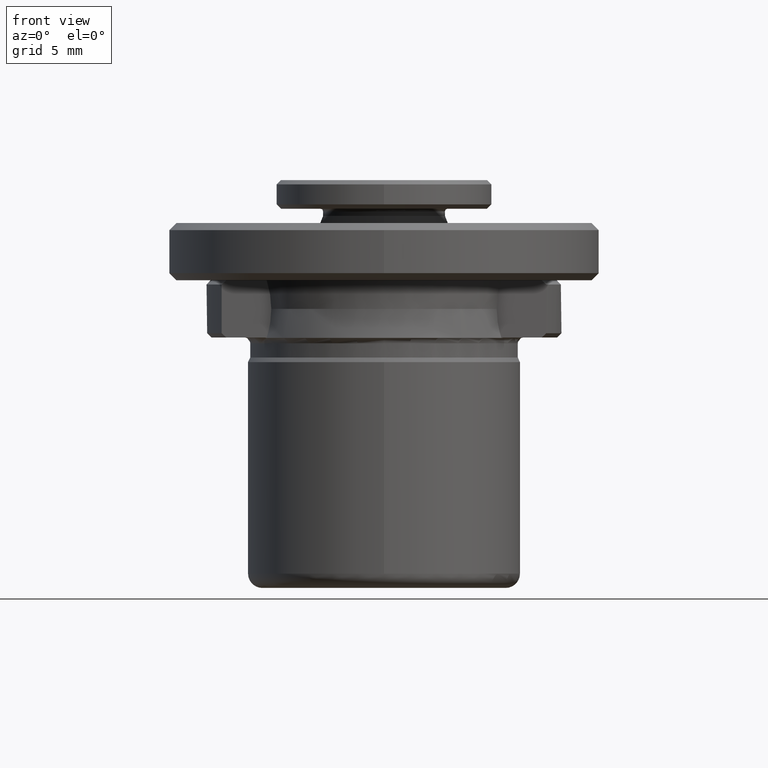
[diagram: clean part render]
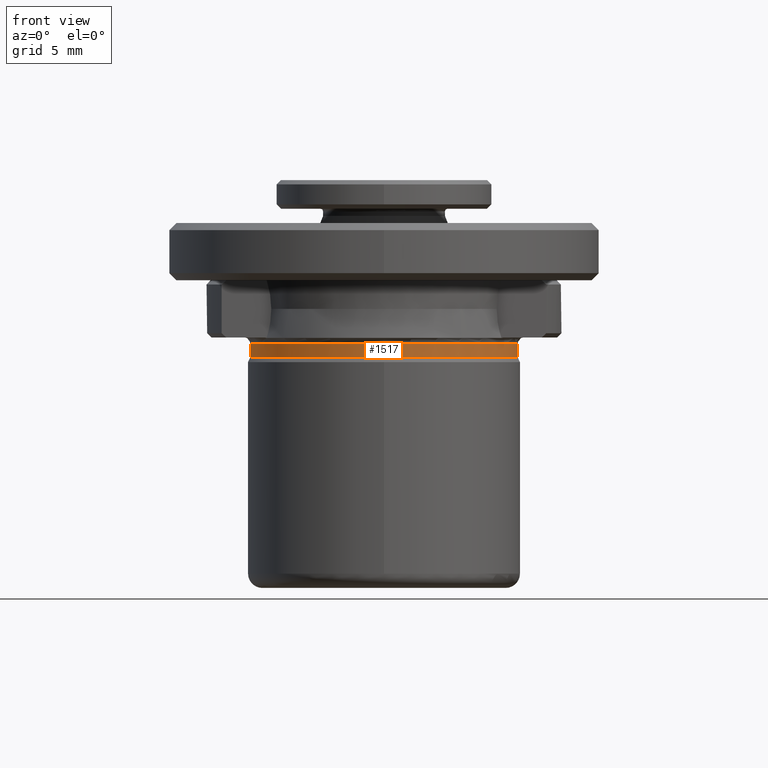
[diagram: same view with one face highlighted and labeled with its STEP entity id]
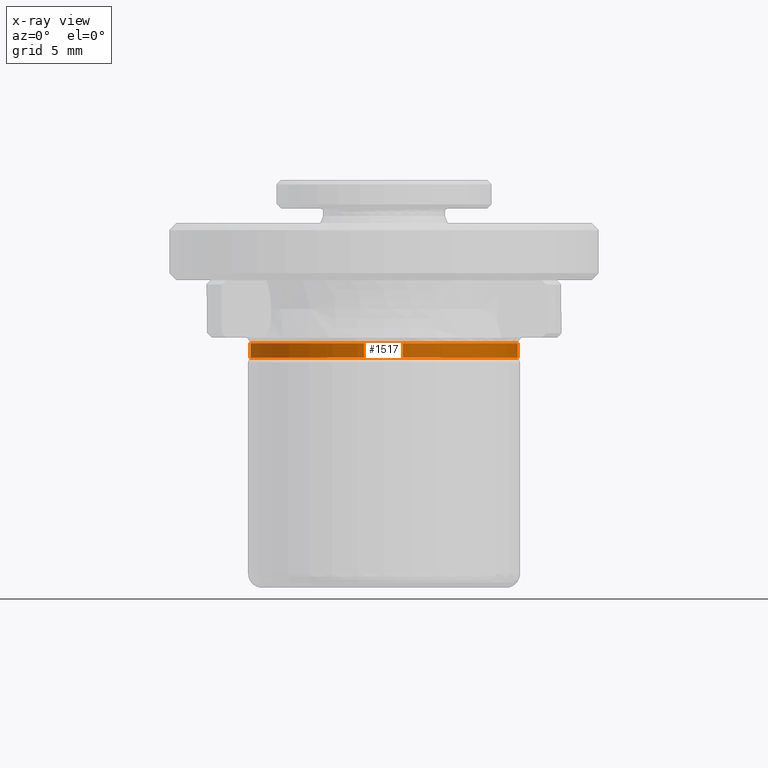
[diagram: x-ray of the same camera — body ghosted, the highlighted face saturated]
A machine part, front view. The second image highlights one B-rep face of the part: STEP entity #1517.
The next image is the same camera in x-ray: the body ghosted, the highlighted face saturated — about 0% of this face is hidden behind the body in this view.
In plain terms, the highlighted cylindrical surface (partial cylindrical patch) has radius 9.35 mm, axis along (0, -0, 1).
Its self-contained STEP definition (entity closure, byte-faithful):
#55 = DIRECTION ( 'NONE',  ( 0.0000000000000000000, -0.0000000000000000000, 1.000000000000000000 ) ) ;
#107 = VECTOR ( 'NONE', #961, 1000.000000000000000 ) ;
#115 = DIRECTION ( 'NONE',  ( 1.000000000000000000, 0.0000000000000000000, 2.782978838465465100E-016 ) ) ;
#146 = CARTESIAN_POINT ( 'NONE',  ( 0.0000000000000000000, 0.0000000000000000000, 4.349999999879580400 ) ) ;
#202 = CYLINDRICAL_SURFACE ( 'NONE', #1397, 9.350000000000003200 ) ;
#251 = CARTESIAN_POINT ( 'NONE',  ( 9.350000000000003200, 1.154229608196380700E-015, 3.351676037999996800 ) ) ;
#336 = EDGE_LOOP ( 'NONE', ( #1340, #1725, #2088, #341 ) ) ;
#337 = EDGE_CURVE ( 'NONE', #1441, #1626, #1321, .T. ) ;
#341 = ORIENTED_EDGE ( 'NONE', *, *, #337, .T. ) ;
#364 = CARTESIAN_POINT ( 'NONE',  ( -9.350000000108330800, 1.145044757216041900E-015, 4.349999999879580400 ) ) ;
#383 = CARTESIAN_POINT ( 'NONE',  ( 0.0000000000000000000, 0.0000000000000000000, 3.351676037999999500 ) ) ;
#523 = CIRCLE ( 'NONE', #907, 9.350000000000003200 ) ;
#738 = DIRECTION ( 'NONE',  ( 1.000000000000000000, 0.0000000000000000000, 0.0000000000000000000 ) ) ;
#815 = DIRECTION ( 'NONE',  ( -1.000000000000000000, 0.0000000000000000000, 0.0000000000000000000 ) ) ;
#874 = AXIS2_PLACEMENT_3D ( 'NONE', #146, #2021, #815 ) ;
#907 = AXIS2_PLACEMENT_3D ( 'NONE', #952, #1298, #115 ) ;
#952 = CARTESIAN_POINT ( 'NONE',  ( 0.0000000000000000000, 0.0000000000000000000, 3.351676037999996800 ) ) ;
#961 = DIRECTION ( 'NONE',  ( 0.0000000000000000000, -0.0000000000000000000, 1.000000000000000000 ) ) ;
#974 = CARTESIAN_POINT ( 'NONE',  ( 9.350000000000003200, 0.0000000000000000000, 3.351676037999999500 ) ) ;
#1022 = EDGE_CURVE ( 'NONE', #1452, #1604, #523, .T. ) ;
#1081 = DIRECTION ( 'NONE',  ( 0.0000000000000000000, -0.0000000000000000000, 1.000000000000000000 ) ) ;
#1293 = CARTESIAN_POINT ( 'NONE',  ( -9.350000000000003200, 1.145044757202775600E-015, 3.351676037999999500 ) ) ;
#1298 = DIRECTION ( 'NONE',  ( -0.0000000000000000000, -0.0000000000000000000, -1.000000000000000000 ) ) ;
#1317 = EDGE_CURVE ( 'NONE', #1604, #1626, #1405, .T. ) ;
#1321 = CIRCLE ( 'NONE', #874, 9.350000000108330800 ) ;
#1340 = ORIENTED_EDGE ( 'NONE', *, *, #1317, .F. ) ;
#1397 = AXIS2_PLACEMENT_3D ( 'NONE', #383, #1081, #738 ) ;
#1405 = LINE ( 'NONE', #1293, #107 ) ;
#1441 = VERTEX_POINT ( 'NONE', #2146 ) ;
#1452 = VERTEX_POINT ( 'NONE', #251 ) ;
#1505 = LINE ( 'NONE', #974, #1965 ) ;
#1517 = ADVANCED_FACE ( 'NONE', ( #1553 ), #202, .T. ) ;
#1537 = EDGE_CURVE ( 'NONE', #1452, #1441, #1505, .T. ) ;
#1553 = FACE_OUTER_BOUND ( 'NONE', #336, .T. ) ;
#1604 = VERTEX_POINT ( 'NONE', #1742 ) ;
#1626 = VERTEX_POINT ( 'NONE', #364 ) ;
#1725 = ORIENTED_EDGE ( 'NONE', *, *, #1022, .F. ) ;
#1742 = CARTESIAN_POINT ( 'NONE',  ( -9.350000000000003200, 0.0000000000000000000, 3.351676037999996800 ) ) ;
#1965 = VECTOR ( 'NONE', #55, 1000.000000000000000 ) ;
#2021 = DIRECTION ( 'NONE',  ( 0.0000000000000000000, -0.0000000000000000000, -1.000000000000000000 ) ) ;
#2088 = ORIENTED_EDGE ( 'NONE', *, *, #1537, .T. ) ;
#2146 = CARTESIAN_POINT ( 'NONE',  ( 9.350000000108330800, 0.0000000000000000000, 4.349999999879580400 ) ) ;